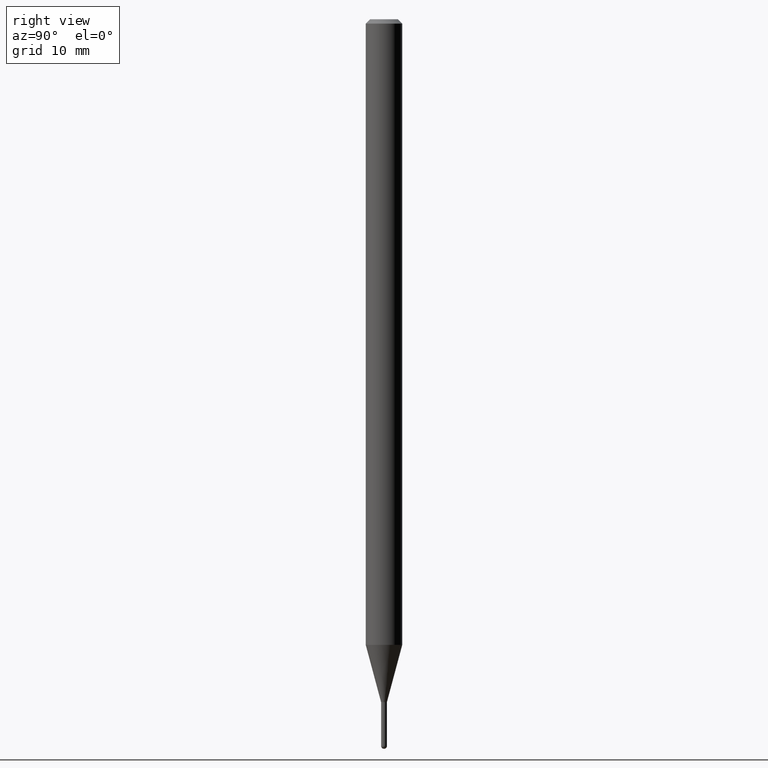
[diagram: clean part render]
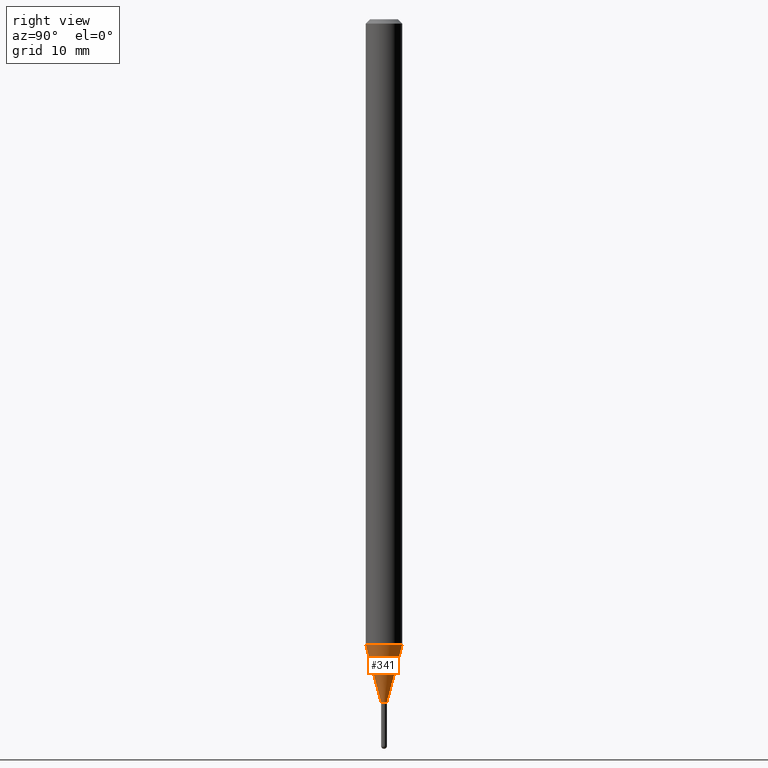
[diagram: same view with one face highlighted and labeled with its STEP entity id]
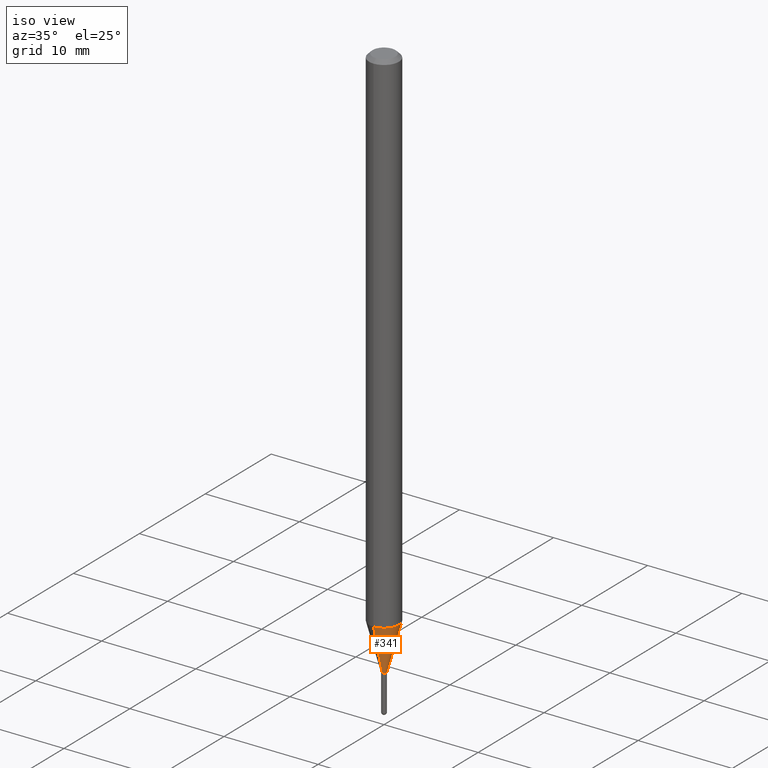
[diagram: same view with one face highlighted and labeled with its STEP entity id]
A machine part, right view. The second image highlights one B-rep face of the part: STEP entity #341.
A second angle (iso view) of the same face is appended — the face is thin or edge-on in the first view.
In plain terms, the highlighted conical surface has half-angle 15 deg.
Its self-contained STEP definition (entity closure, byte-faithful):
#26 = DIRECTION ( 'NONE',  ( -6.982962677686265922E-15, -1.000000000000000000, 0.000000000000000000 ) ) ;
#36 = DIRECTION ( 'NONE',  ( 1.839019923739649619E-15, 0.2588190451025318972, 0.9659258262890653146 ) ) ;
#59 = ORIENTED_EDGE ( 'NONE', *, *, #169, .T. ) ;
#60 = DIRECTION ( 'NONE',  ( -1.807323732225378654E-15, -0.2588190451025251249, 0.9659258262890670910 ) ) ;
#65 = AXIS2_PLACEMENT_3D ( 'NONE', #150, #280, #26 ) ;
#105 = DIRECTION ( 'NONE',  ( -2.445532582001462791E-29, 3.491390008244272632E-15, 1.000000000000000000 ) ) ;
#110 = CARTESIAN_POINT ( 'NONE',  ( 7.105427357606474729E-17, 0.009999999999991479246, -2.340000000000000302 ) ) ;
#117 = VERTEX_POINT ( 'NONE', #347 ) ;
#122 = EDGE_LOOP ( 'NONE', ( #324, #59, #162, #430 ) ) ;
#150 = CARTESIAN_POINT ( 'NONE',  ( 5.722546241883422668E-29, -8.169852619291597721E-15, -2.340000000000000302 ) ) ;
#152 = CARTESIAN_POINT ( 'NONE',  ( -4.364351673553393088E-16, -0.06250000000000749401, -2.144067332602638931 ) ) ;
#159 = VECTOR ( 'NONE', #36, 39.37007874015748143 ) ;
#162 = ORIENTED_EDGE ( 'NONE', *, *, #435, .F. ) ;
#169 = EDGE_CURVE ( 'NONE', #117, #283, #481, .T. ) ;
#234 = VECTOR ( 'NONE', #60, 39.37007874015748854 ) ;
#247 = LINE ( 'NONE', #288, #234 ) ;
#248 = AXIS2_PLACEMENT_3D ( 'NONE', #263, #343, #491 ) ;
#250 = VERTEX_POINT ( 'NONE', #442 ) ;
#263 = CARTESIAN_POINT ( 'NONE',  ( 5.243386519884720525E-29, -7.485775262051803543E-15, -2.144067332602638931 ) ) ;
#265 = CIRCLE ( 'NONE', #248, 0.06250000000000000000 ) ;
#267 = VERTEX_POINT ( 'NONE', #152 ) ;
#276 = CONICAL_SURFACE ( 'NONE', #65, 0.009999999999999649794, 0.2617993877991574569 ) ;
#280 = DIRECTION ( 'NONE',  ( -2.445532582001462791E-29, 3.491390008244272632E-15, 1.000000000000000000 ) ) ;
#283 = VERTEX_POINT ( 'NONE', #436 ) ;
#288 = CARTESIAN_POINT ( 'NONE',  ( -6.982962677680298731E-17, -0.01000000000000782034, -2.340000000000000302 ) ) ;
#294 = EDGE_CURVE ( 'NONE', #250, #267, #247, .T. ) ;
#306 = AXIS2_PLACEMENT_3D ( 'NONE', #465, #105, #409 ) ;
#324 = ORIENTED_EDGE ( 'NONE', *, *, #469, .T. ) ;
#341 = ADVANCED_FACE ( 'NONE', ( #505 ), #276, .T. ) ;
#343 = DIRECTION ( 'NONE',  ( -2.445532582001462791E-29, 3.491390008244272632E-15, 1.000000000000000000 ) ) ;
#347 = CARTESIAN_POINT ( 'NONE',  ( 2.575717417130899915E-16, 0.009999999999991479246, -2.340000000000000302 ) ) ;
#365 = CIRCLE ( 'NONE', #306, 0.009999999999999649794 ) ;
#409 = DIRECTION ( 'NONE',  ( -6.982962677686265922E-15, -1.000000000000000000, 0.000000000000000000 ) ) ;
#430 = ORIENTED_EDGE ( 'NONE', *, *, #294, .F. ) ;
#435 = EDGE_CURVE ( 'NONE', #267, #283, #265, .T. ) ;
#436 = CARTESIAN_POINT ( 'NONE',  ( 4.440892098501148782E-16, 0.06249999999999250599, -2.144067332602639375 ) ) ;
#442 = CARTESIAN_POINT ( 'NONE',  ( -6.982962677680298731E-17, -0.01000000000000782034, -2.340000000000000302 ) ) ;
#465 = CARTESIAN_POINT ( 'NONE',  ( 5.722546241883422668E-29, -8.169852619291597721E-15, -2.340000000000000302 ) ) ;
#469 = EDGE_CURVE ( 'NONE', #250, #117, #365, .T. ) ;
#481 = LINE ( 'NONE', #110, #159 ) ;
#491 = DIRECTION ( 'NONE',  ( -6.982962677686265922E-15, -1.000000000000000000, 4.370956789862821150E-15 ) ) ;
#505 = FACE_OUTER_BOUND ( 'NONE', #122, .T. ) ;